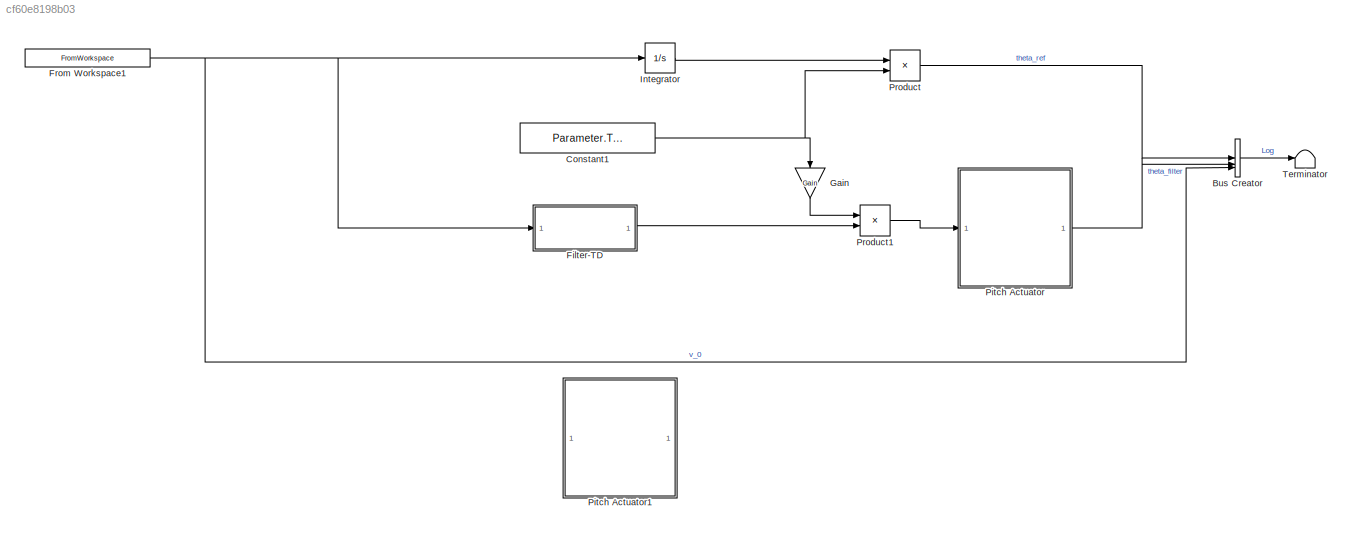
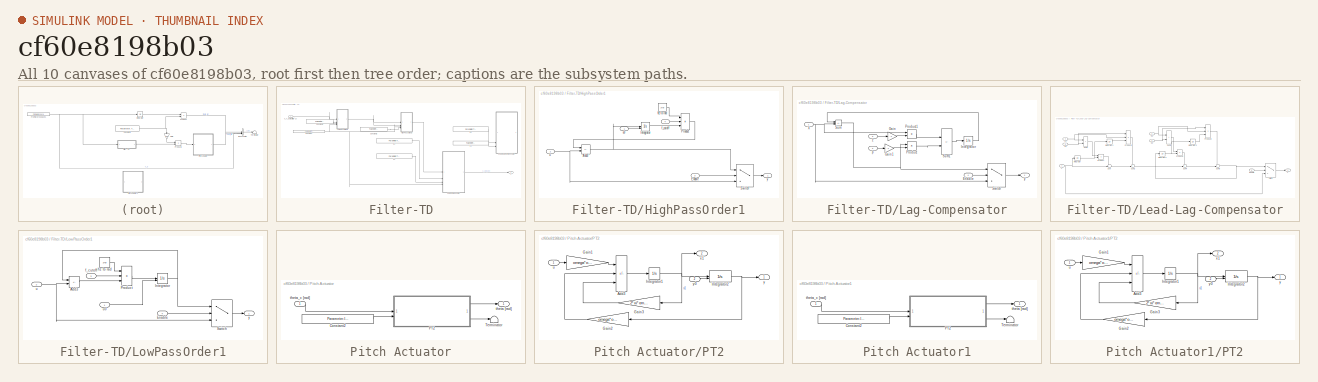
[diagram: thumbnail index - all 10 canvases of the model, root first then tree order]
MODEL slx_cf60e8198b03
KIND model
CONFIG AbsTol = auto
CONFIG EnableMultiTasking = off
CONFIG FixedStep = dt
CONFIG MaxStep = auto
CONFIG MinStep = auto
CONFIG RelTol = 1e-3
CONFIG SampleTimeConstraint = Unconstrained
CONFIG SolverName = FixedStepAuto
CONFIG StartTime = 0.0
CONFIG StopTime = T
BLOCK [BusCreator] Bus Creator
  DisplayOption = bar
  InheritFromInputs = on
  Inputs = 3
BLOCK [Constant] Constant1
  Value = Parameter.TD.gain
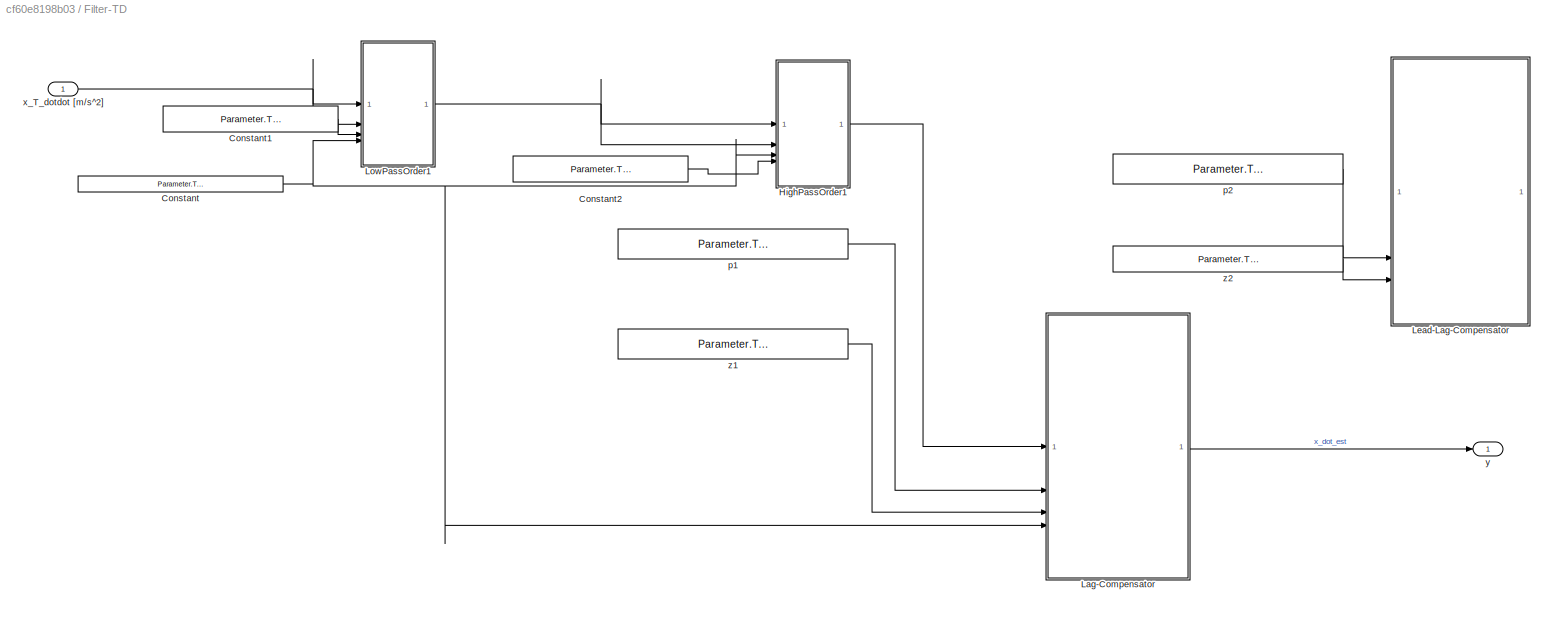
BLOCK [SubSystem] Filter-TD
BLOCK [Constant] Filter-TD/Constant
  Value = Parameter.TD.RealTD.Enable
BLOCK [Constant] Filter-TD/Constant1
  Value = Parameter.TD.LowPass.f_cutoff
BLOCK [Constant] Filter-TD/Constant2
  Value = Parameter.TD.HighPass.f_cutoff
BLOCK [SubSystem] Filter-TD/HighPassOrder1
BLOCK [Sum] Filter-TD/HighPassOrder1/Add3
  IconShape = rectangular
  Inputs = -+
BLOCK [Inport] Filter-TD/HighPassOrder1/Enable
  Port = 3
BLOCK [Integrator] Filter-TD/HighPassOrder1/Integrator
  InitialConditionSource = external
BLOCK [Product] Filter-TD/HighPassOrder1/Product
  Inputs = 3
  RndMeth = Zero
BLOCK [Switch] Filter-TD/HighPassOrder1/Switch
  Criteria = u2 > Threshold
  InputSameDT = off
  SaturateOnIntegerOverflow = off
  Threshold = 0.5
BLOCK [Inport] Filter-TD/HighPassOrder1/f_cutoff
  Port = 4
BLOCK [Constant] Filter-TD/HighPassOrder1/hz to rad
  Value = 2*pi
BLOCK [Inport] Filter-TD/HighPassOrder1/u
  Port = 2
BLOCK [Inport] Filter-TD/HighPassOrder1/u0
BLOCK [Outport] Filter-TD/HighPassOrder1/y
  VectorParamsAs1DForOutWhenUnconnected = off
BLOCK [SubSystem] Filter-TD/Lag-Compensator
BLOCK [Inport] Filter-TD/Lag-Compensator/Enable
  Port = 4
BLOCK [Gain] Filter-TD/Lag-Compensator/Gain
  Gain = -1
BLOCK [Gain] Filter-TD/Lag-Compensator/Gain1
  Gain = -1
BLOCK [Integrator] Filter-TD/Lag-Compensator/Integrator
BLOCK [Product] Filter-TD/Lag-Compensator/Product
BLOCK [Product] Filter-TD/Lag-Compensator/Product1
BLOCK [Sum] Filter-TD/Lag-Compensator/Sum
  IconShape = rectangular
  Inputs = -+
BLOCK [Sum] Filter-TD/Lag-Compensator/Sum1
  IconShape = rectangular
  Inputs = -+
BLOCK [Switch] Filter-TD/Lag-Compensator/Switch
  Criteria = u2 > Threshold
  InputSameDT = off
  SaturateOnIntegerOverflow = off
  Threshold = 0.5
BLOCK [Inport] Filter-TD/Lag-Compensator/X
BLOCK [Inport] Filter-TD/Lag-Compensator/p
  Port = 2
BLOCK [Outport] Filter-TD/Lag-Compensator/y
BLOCK [Inport] Filter-TD/Lag-Compensator/z
  Port = 3
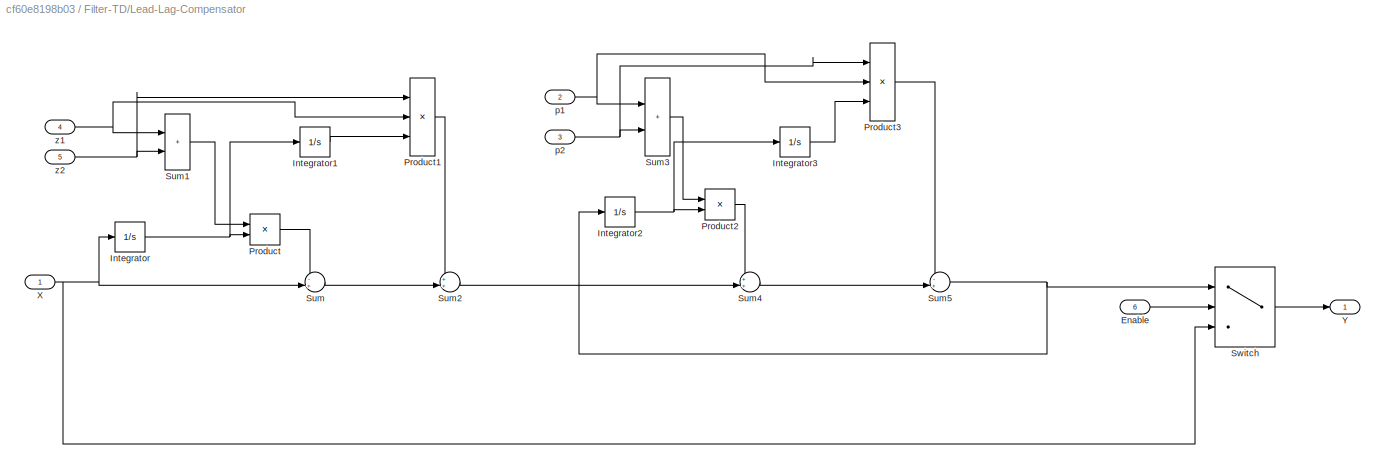
BLOCK [SubSystem] Filter-TD/Lead-Lag-Compensator
  Commented = on
BLOCK [Inport] Filter-TD/Lead-Lag-Compensator/Enable
  Port = 6
BLOCK [Integrator] Filter-TD/Lead-Lag-Compensator/Integrator
BLOCK [Integrator] Filter-TD/Lead-Lag-Compensator/Integrator1
BLOCK [Integrator] Filter-TD/Lead-Lag-Compensator/Integrator2
BLOCK [Integrator] Filter-TD/Lead-Lag-Compensator/Integrator3
BLOCK [Product] Filter-TD/Lead-Lag-Compensator/Product
BLOCK [Product] Filter-TD/Lead-Lag-Compensator/Product1
  Inputs = 3
BLOCK [Product] Filter-TD/Lead-Lag-Compensator/Product2
BLOCK [Product] Filter-TD/Lead-Lag-Compensator/Product3
  Inputs = 3
BLOCK [Sum] Filter-TD/Lead-Lag-Compensator/Sum
  Inputs = -+|
BLOCK [Sum] Filter-TD/Lead-Lag-Compensator/Sum1
  IconShape = rectangular
BLOCK [Sum] Filter-TD/Lead-Lag-Compensator/Sum2
  Inputs = ++|
BLOCK [Sum] Filter-TD/Lead-Lag-Compensator/Sum3
  IconShape = rectangular
BLOCK [Sum] Filter-TD/Lead-Lag-Compensator/Sum4
  Inputs = ++|
BLOCK [Sum] Filter-TD/Lead-Lag-Compensator/Sum5
  Inputs = -+|
BLOCK [Switch] Filter-TD/Lead-Lag-Compensator/Switch
  Criteria = u2 > Threshold
  InputSameDT = off
  SaturateOnIntegerOverflow = off
  Threshold = 0.5
BLOCK [Inport] Filter-TD/Lead-Lag-Compensator/X
BLOCK [Outport] Filter-TD/Lead-Lag-Compensator/Y
BLOCK [Inport] Filter-TD/Lead-Lag-Compensator/p1
  Port = 2
BLOCK [Inport] Filter-TD/Lead-Lag-Compensator/p2
  Port = 3
BLOCK [Inport] Filter-TD/Lead-Lag-Compensator/z1
  Port = 4
BLOCK [Inport] Filter-TD/Lead-Lag-Compensator/z2
  Port = 5
BLOCK [SubSystem] Filter-TD/LowPassOrder1
BLOCK [Sum] Filter-TD/LowPassOrder1/Add3
  IconShape = rectangular
  Inputs = -+
BLOCK [Inport] Filter-TD/LowPassOrder1/Enable
  Port = 4
BLOCK [Integrator] Filter-TD/LowPassOrder1/Integrator
  InitialConditionSource = external
BLOCK [Product] Filter-TD/LowPassOrder1/Product
  Inputs = 3
  RndMeth = Zero
BLOCK [Switch] Filter-TD/LowPassOrder1/Switch
  Criteria = u2 > Threshold
  InputSameDT = off
  SaturateOnIntegerOverflow = off
  Threshold = 0.5
BLOCK [Inport] Filter-TD/LowPassOrder1/f_cutoff
  Port = 3
BLOCK [Constant] Filter-TD/LowPassOrder1/hz to rad
  Value = 2*pi
BLOCK [Inport] Filter-TD/LowPassOrder1/u
  Port = 2
BLOCK [Inport] Filter-TD/LowPassOrder1/u0
BLOCK [Outport] Filter-TD/LowPassOrder1/y
  VectorParamsAs1DForOutWhenUnconnected = off
BLOCK [Constant] Filter-TD/p1
  Value = Parameter.TD.LeadLagCompensator.Pole1
BLOCK [Constant] Filter-TD/p2
  Commented = on
  Value = Parameter.TD.LeadLagCompensator.Pole2
BLOCK [Inport] Filter-TD/x_T_dotdot [m//s^2]
BLOCK [Outport] Filter-TD/y
BLOCK [Constant] Filter-TD/z1
  Value = Parameter.TD.LeadLagCompensator.Zero1
BLOCK [Constant] Filter-TD/z2
  Commented = on
  Value = Parameter.TD.LeadLagCompensator.Zero2
BLOCK [FromWorkspace] From Workspace1
  VariableName = Disturbance.v_0
BLOCK [Gain] Gain
  Gain = Gain
  NameLocation = left
BLOCK [Integrator] Integrator
BLOCK [SubSystem] Pitch Actuator
BLOCK [Constant] Pitch Actuator/Constant2
  Value = Parameter.IC.theta
BLOCK [SubSystem] Pitch Actuator/PT2
BLOCK [Sum] Pitch Actuator/PT2/Add3
  IconShape = rectangular
  Inputs = +--
BLOCK [Gain] Pitch Actuator/PT2/Gain1
  Gain = omega*omega
  OutDataTypeStr = Inherit: Same as input
  ParamDataTypeStr = Inherit: Same as input
  SaturateOnIntegerOverflow = on
BLOCK [Gain] Pitch Actuator/PT2/Gain2
  Gain = omega*omega
  OutDataTypeStr = Inherit: Same as input
  ParamDataTypeStr = Inherit: Same as input
  SaturateOnIntegerOverflow = on
BLOCK [Gain] Pitch Actuator/PT2/Gain3
  Gain = 2*xi*omega
  NameLocation = top
  OutDataTypeStr = Inherit: Same as input
  ParamDataTypeStr = Inherit: Same as input
  SaturateOnIntegerOverflow = on
BLOCK [Integrator] Pitch Actuator/PT2/Integrator1
  LowerSaturationLimit = x1_min
  UpperSaturationLimit = x1_max
BLOCK [Integrator] Pitch Actuator/PT2/Integrator2
  InitialCondition = x2_t0
  InitialConditionSource = external
  LowerSaturationLimit = x2_min
  UpperSaturationLimit = x2_max
BLOCK [Inport] Pitch Actuator/PT2/u
BLOCK [Outport] Pitch Actuator/PT2/x1
  Port = 2
BLOCK [Outport] Pitch Actuator/PT2/y
BLOCK [Inport] Pitch Actuator/PT2/y0
  Port = 2
BLOCK [Terminator] Pitch Actuator/Terminator
BLOCK [Outport] Pitch Actuator/theta [rad]
BLOCK [Inport] Pitch Actuator/theta_c [rad]
BLOCK [SubSystem] Pitch Actuator1
  Commented = on
BLOCK [Constant] Pitch Actuator1/Constant2
  Value = Parameter.IC.theta
BLOCK [SubSystem] Pitch Actuator1/PT2
BLOCK [Sum] Pitch Actuator1/PT2/Add3
  IconShape = rectangular
  Inputs = +--
BLOCK [Gain] Pitch Actuator1/PT2/Gain1
  Gain = omega*omega
  OutDataTypeStr = Inherit: Same as input
  ParamDataTypeStr = Inherit: Same as input
  SaturateOnIntegerOverflow = on
BLOCK [Gain] Pitch Actuator1/PT2/Gain2
  Gain = omega*omega
  OutDataTypeStr = Inherit: Same as input
  ParamDataTypeStr = Inherit: Same as input
  SaturateOnIntegerOverflow = on
BLOCK [Gain] Pitch Actuator1/PT2/Gain3
  Gain = 2*xi*omega
  NameLocation = top
  OutDataTypeStr = Inherit: Same as input
  ParamDataTypeStr = Inherit: Same as input
  SaturateOnIntegerOverflow = on
BLOCK [Integrator] Pitch Actuator1/PT2/Integrator1
  LimitOutput = on
  LowerSaturationLimit = x1_min
  UpperSaturationLimit = x1_max
BLOCK [Integrator] Pitch Actuator1/PT2/Integrator2
  InitialCondition = x2_t0
  InitialConditionSource = external
  LimitOutput = on
  LowerSaturationLimit = x2_min
  UpperSaturationLimit = x2_max
BLOCK [Inport] Pitch Actuator1/PT2/u
BLOCK [Outport] Pitch Actuator1/PT2/x1
  Port = 2
BLOCK [Outport] Pitch Actuator1/PT2/y
BLOCK [Inport] Pitch Actuator1/PT2/y0
  Port = 2
BLOCK [Terminator] Pitch Actuator1/Terminator
BLOCK [Outport] Pitch Actuator1/theta [rad]
BLOCK [Inport] Pitch Actuator1/theta_c [rad]
BLOCK [Product] Product
BLOCK [Product] Product1
BLOCK [Terminator] Terminator
LINE Bus Creator:1 -> Terminator:1
NET Constant1:1 -> Gain:1, Product:2
LINE Filter-TD/Constant1:1 -> Filter-TD/LowPassOrder1:3
LINE Filter-TD/Constant2:1 -> Filter-TD/HighPassOrder1:4
NET Filter-TD/Constant:1 -> Filter-TD/HighPassOrder1:3, Filter-TD/Lag-Compensator:4, Filter-TD/LowPassOrder1:4
NET Filter-TD/HighPassOrder1/Add3:1 -> Filter-TD/HighPassOrder1/Integrator:1, Filter-TD/HighPassOrder1/Switch:1
LINE Filter-TD/HighPassOrder1/Enable:1 -> Filter-TD/HighPassOrder1/Switch:2
LINE Filter-TD/HighPassOrder1/Integrator:1 -> Filter-TD/HighPassOrder1/Product:3
LINE Filter-TD/HighPassOrder1/Product:1 -> Filter-TD/HighPassOrder1/Add3:1
LINE Filter-TD/HighPassOrder1/Switch:1 -> Filter-TD/HighPassOrder1/y:1
LINE Filter-TD/HighPassOrder1/f_cutoff:1 -> Filter-TD/HighPassOrder1/Product:2
LINE Filter-TD/HighPassOrder1/hz to rad:1 -> Filter-TD/HighPassOrder1/Product:1
LINE Filter-TD/HighPassOrder1/u0:1 -> Filter-TD/HighPassOrder1/Integrator:2
NET Filter-TD/HighPassOrder1/u:1 -> Filter-TD/HighPassOrder1/Add3:2, Filter-TD/HighPassOrder1/Switch:3
LINE Filter-TD/HighPassOrder1:1 -> Filter-TD/Lag-Compensator:1
LINE Filter-TD/Lag-Compensator/Enable:1 -> Filter-TD/Lag-Compensator/Switch:2
LINE Filter-TD/Lag-Compensator/Gain1:1 -> Filter-TD/Lag-Compensator/Product:2
LINE Filter-TD/Lag-Compensator/Gain:1 -> Filter-TD/Lag-Compensator/Product1:2
LINE Filter-TD/Lag-Compensator/Integrator:1 -> Filter-TD/Lag-Compensator/Sum:1
LINE Filter-TD/Lag-Compensator/Product1:1 -> Filter-TD/Lag-Compensator/Sum1:1
LINE Filter-TD/Lag-Compensator/Product:1 -> Filter-TD/Lag-Compensator/Sum1:2
LINE Filter-TD/Lag-Compensator/Sum1:1 -> Filter-TD/Lag-Compensator/Integrator:1
NET Filter-TD/Lag-Compensator/Sum:1 -> Filter-TD/Lag-Compensator/Product:1, Filter-TD/Lag-Compensator/Switch:1
LINE Filter-TD/Lag-Compensator/Switch:1 -> Filter-TD/Lag-Compensator/y:1
NET Filter-TD/Lag-Compensator/X:1 -> Filter-TD/Lag-Compensator/Product1:1, Filter-TD/Lag-Compensator/Sum:2, Filter-TD/Lag-Compensator/Switch:3
LINE Filter-TD/Lag-Compensator/p:1 -> Filter-TD/Lag-Compensator/Gain1:1
LINE Filter-TD/Lag-Compensator/z:1 -> Filter-TD/Lag-Compensator/Gain:1
LINE Filter-TD/Lag-Compensator:1 -> Filter-TD/y:1
LINE Filter-TD/Lead-Lag-Compensator/Enable:1 -> Filter-TD/Lead-Lag-Compensator/Switch:2
LINE Filter-TD/Lead-Lag-Compensator/Integrator1:1 -> Filter-TD/Lead-Lag-Compensator/Product1:3
NET Filter-TD/Lead-Lag-Compensator/Integrator2:1 -> Filter-TD/Lead-Lag-Compensator/Integrator3:1, Filter-TD/Lead-Lag-Compensator/Product2:2
LINE Filter-TD/Lead-Lag-Compensator/Integrator3:1 -> Filter-TD/Lead-Lag-Compensator/Product3:3
NET Filter-TD/Lead-Lag-Compensator/Integrator:1 -> Filter-TD/Lead-Lag-Compensator/Integrator1:1, Filter-TD/Lead-Lag-Compensator/Product:2
LINE Filter-TD/Lead-Lag-Compensator/Product1:1 -> Filter-TD/Lead-Lag-Compensator/Sum2:1
LINE Filter-TD/Lead-Lag-Compensator/Product2:1 -> Filter-TD/Lead-Lag-Compensator/Sum4:1
LINE Filter-TD/Lead-Lag-Compensator/Product3:1 -> Filter-TD/Lead-Lag-Compensator/Sum5:1
LINE Filter-TD/Lead-Lag-Compensator/Product:1 -> Filter-TD/Lead-Lag-Compensator/Sum:1
LINE Filter-TD/Lead-Lag-Compensator/Sum1:1 -> Filter-TD/Lead-Lag-Compensator/Product:1
LINE Filter-TD/Lead-Lag-Compensator/Sum2:1 -> Filter-TD/Lead-Lag-Compensator/Sum4:2
LINE Filter-TD/Lead-Lag-Compensator/Sum3:1 -> Filter-TD/Lead-Lag-Compensator/Product2:1
LINE Filter-TD/Lead-Lag-Compensator/Sum4:1 -> Filter-TD/Lead-Lag-Compensator/Sum5:2
NET Filter-TD/Lead-Lag-Compensator/Sum5:1 -> Filter-TD/Lead-Lag-Compensator/Integrator2:1, Filter-TD/Lead-Lag-Compensator/Switch:1
LINE Filter-TD/Lead-Lag-Compensator/Sum:1 -> Filter-TD/Lead-Lag-Compensator/Sum2:2
LINE Filter-TD/Lead-Lag-Compensator/Switch:1 -> Filter-TD/Lead-Lag-Compensator/Y:1
NET Filter-TD/Lead-Lag-Compensator/X:1 -> Filter-TD/Lead-Lag-Compensator/Integrator:1, Filter-TD/Lead-Lag-Compensator/Sum:2, Filter-TD/Lead-Lag-Compensator/Switch:3
NET Filter-TD/Lead-Lag-Compensator/p1:1 -> Filter-TD/Lead-Lag-Compensator/Product3:2, Filter-TD/Lead-Lag-Compensator/Sum3:1
NET Filter-TD/Lead-Lag-Compensator/p2:1 -> Filter-TD/Lead-Lag-Compensator/Product3:1, Filter-TD/Lead-Lag-Compensator/Sum3:2
NET Filter-TD/Lead-Lag-Compensator/z1:1 -> Filter-TD/Lead-Lag-Compensator/Product1:2, Filter-TD/Lead-Lag-Compensator/Sum1:1
NET Filter-TD/Lead-Lag-Compensator/z2:1 -> Filter-TD/Lead-Lag-Compensator/Product1:1, Filter-TD/Lead-Lag-Compensator/Sum1:2
LINE Filter-TD/LowPassOrder1/Add3:1 -> Filter-TD/LowPassOrder1/Product:3
LINE Filter-TD/LowPassOrder1/Enable:1 -> Filter-TD/LowPassOrder1/Switch:2
NET Filter-TD/LowPassOrder1/Integrator:1 -> Filter-TD/LowPassOrder1/Add3:1, Filter-TD/LowPassOrder1/Switch:1
LINE Filter-TD/LowPassOrder1/Product:1 -> Filter-TD/LowPassOrder1/Integrator:1
LINE Filter-TD/LowPassOrder1/Switch:1 -> Filter-TD/LowPassOrder1/y:1
LINE Filter-TD/LowPassOrder1/f_cutoff:1 -> Filter-TD/LowPassOrder1/Product:2
LINE Filter-TD/LowPassOrder1/hz to rad:1 -> Filter-TD/LowPassOrder1/Product:1
LINE Filter-TD/LowPassOrder1/u0:1 -> Filter-TD/LowPassOrder1/Integrator:2
NET Filter-TD/LowPassOrder1/u:1 -> Filter-TD/LowPassOrder1/Add3:2, Filter-TD/LowPassOrder1/Switch:3
NET Filter-TD/LowPassOrder1:1 -> Filter-TD/HighPassOrder1:1, Filter-TD/HighPassOrder1:2
LINE Filter-TD/p1:1 -> Filter-TD/Lag-Compensator:2
LINE Filter-TD/p2:1 -> Filter-TD/Lead-Lag-Compensator:3
NET Filter-TD/x_T_dotdot [m//s^2]:1 -> Filter-TD/LowPassOrder1:1, Filter-TD/LowPassOrder1:2
LINE Filter-TD/z1:1 -> Filter-TD/Lag-Compensator:3
LINE Filter-TD/z2:1 -> Filter-TD/Lead-Lag-Compensator:5
LINE Filter-TD:1 -> Product1:2
NET From Workspace1:1 -> Bus Creator:3, Filter-TD:1, Integrator:1
LINE Gain:1 -> Product1:1
LINE Integrator:1 -> Product:1
LINE Pitch Actuator/Constant2:1 -> Pitch Actuator/PT2:2
LINE Pitch Actuator/PT2/Add3:1 -> Pitch Actuator/PT2/Integrator1:1
LINE Pitch Actuator/PT2/Gain1:1 -> Pitch Actuator/PT2/Add3:1
LINE Pitch Actuator/PT2/Gain2:1 -> Pitch Actuator/PT2/Add3:2
LINE Pitch Actuator/PT2/Gain3:1 -> Pitch Actuator/PT2/Add3:3
NET Pitch Actuator/PT2/Integrator1:1 -> Pitch Actuator/PT2/Gain3:1, Pitch Actuator/PT2/Integrator2:1, Pitch Actuator/PT2/x1:1
NET Pitch Actuator/PT2/Integrator2:1 -> Pitch Actuator/PT2/Gain2:1, Pitch Actuator/PT2/y:1
LINE Pitch Actuator/PT2/u:1 -> Pitch Actuator/PT2/Gain1:1
LINE Pitch Actuator/PT2/y0:1 -> Pitch Actuator/PT2/Integrator2:2
LINE Pitch Actuator/PT2:1 -> Pitch Actuator/theta [rad]:1
LINE Pitch Actuator/PT2:2 -> Pitch Actuator/Terminator:1
LINE Pitch Actuator/theta_c [rad]:1 -> Pitch Actuator/PT2:1
LINE Pitch Actuator1/Constant2:1 -> Pitch Actuator1/PT2:2
LINE Pitch Actuator1/PT2/Add3:1 -> Pitch Actuator1/PT2/Integrator1:1
LINE Pitch Actuator1/PT2/Gain1:1 -> Pitch Actuator1/PT2/Add3:1
LINE Pitch Actuator1/PT2/Gain2:1 -> Pitch Actuator1/PT2/Add3:2
LINE Pitch Actuator1/PT2/Gain3:1 -> Pitch Actuator1/PT2/Add3:3
NET Pitch Actuator1/PT2/Integrator1:1 -> Pitch Actuator1/PT2/Gain3:1, Pitch Actuator1/PT2/Integrator2:1, Pitch Actuator1/PT2/x1:1
NET Pitch Actuator1/PT2/Integrator2:1 -> Pitch Actuator1/PT2/Gain2:1, Pitch Actuator1/PT2/y:1
LINE Pitch Actuator1/PT2/u:1 -> Pitch Actuator1/PT2/Gain1:1
LINE Pitch Actuator1/PT2/y0:1 -> Pitch Actuator1/PT2/Integrator2:2
LINE Pitch Actuator1/PT2:1 -> Pitch Actuator1/theta [rad]:1
LINE Pitch Actuator1/PT2:2 -> Pitch Actuator1/Terminator:1
LINE Pitch Actuator1/theta_c [rad]:1 -> Pitch Actuator1/PT2:1
LINE Pitch Actuator:1 -> Bus Creator:2
LINE Product1:1 -> Pitch Actuator:1
LINE Product:1 -> Bus Creator:1
note: NET lines group one-source signal fan-out (src -> all destinations, sorted); 1:1 wires keep LINE
